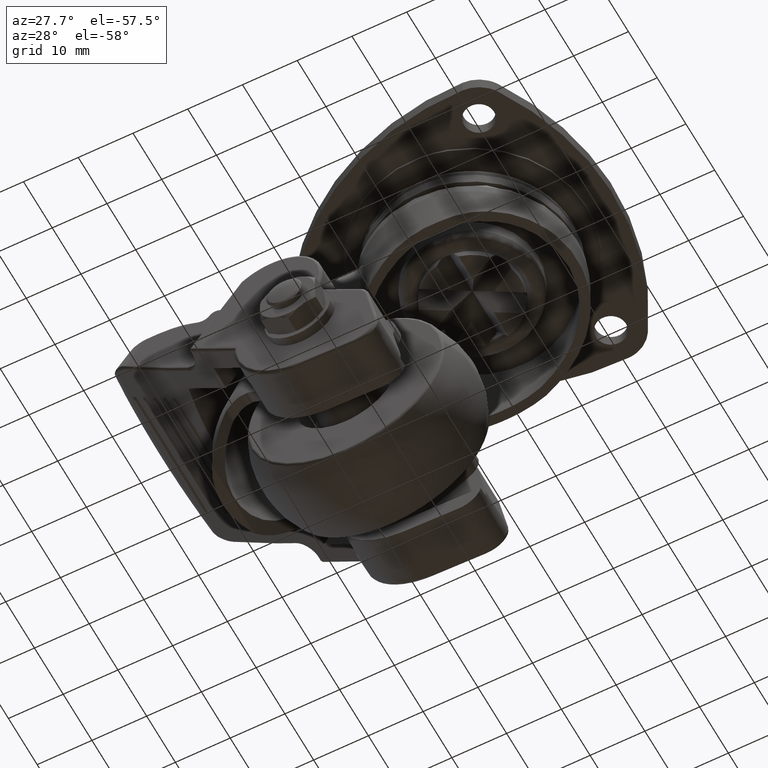
[diagram: clean part render]
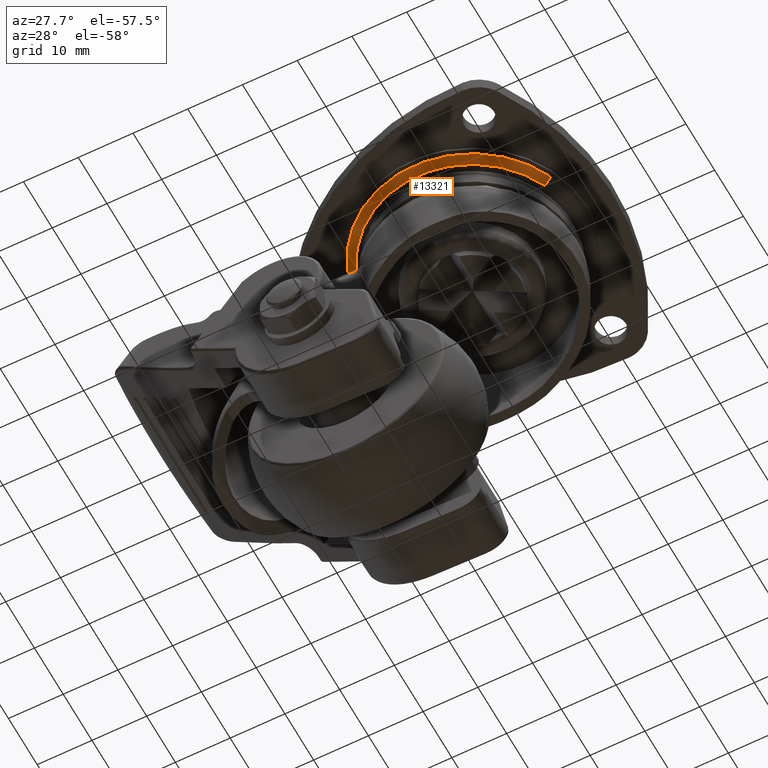
[diagram: same view with one face highlighted and labeled with its STEP entity id]
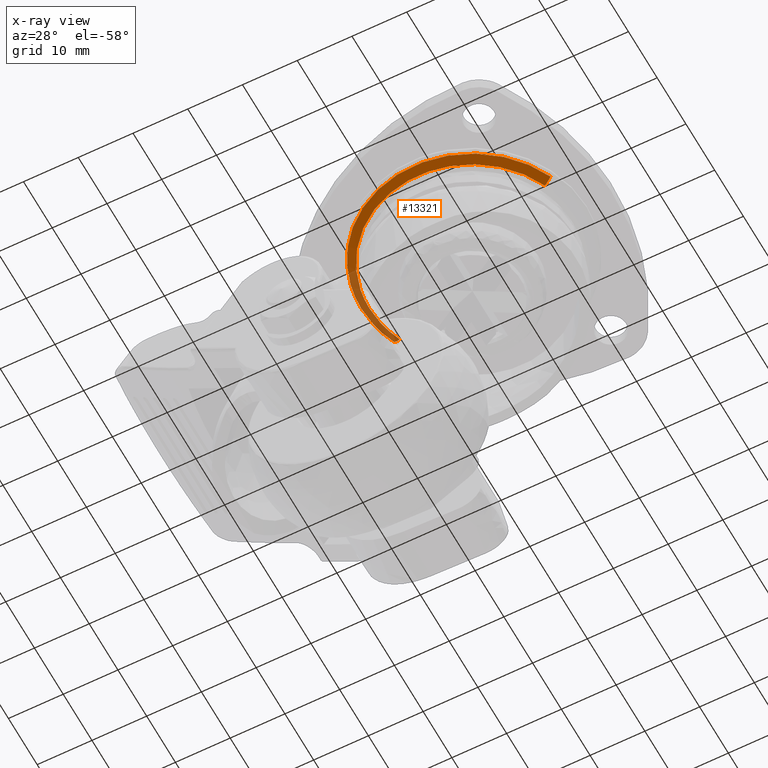
[diagram: x-ray of the same camera — body ghosted, the highlighted face saturated]
A machine part, auxiliary view. The second image highlights one B-rep face of the part: STEP entity #13321.
The next image is the same camera in x-ray: the body ghosted, the highlighted face saturated — about 18% of this face is hidden behind the body in this view.
In plain terms, the highlighted face is a freeform B-spline surface patch.
Its self-contained STEP definition (entity closure, byte-faithful):
#13202=CARTESIAN_POINT('',(18.634398406790041,-8.203213828600154,-3.124564430141668));
#13203=CARTESIAN_POINT('',(10.431184578189892,-26.837612235390193,-3.124564430141667));
#13204=CARTESIAN_POINT('',(-8.203213828600148,-18.634398406790041,-3.124564430141668));
#13205=CARTESIAN_POINT('',(-26.837612235390193,-10.431184578189896,-3.124564430141667));
#13206=CARTESIAN_POINT('',(-18.634398406790041,8.203213828600148,-3.124564430141668));
#13207=CARTESIAN_POINT('',(17.989298724664597,-7.919228774845548,-3.783900312453700));
#13208=CARTESIAN_POINT('',(10.070069949819052,-25.908527499510139,-3.783900312453700));
#13209=CARTESIAN_POINT('',(-7.919228774845543,-17.989298724664597,-3.783900312453700));
#13210=CARTESIAN_POINT('',(-25.908527499510139,-10.070069949819057,-3.783900312453700));
#13211=CARTESIAN_POINT('',(-17.989298724664597,7.919228774845543,-3.783900312453700));
#13212=CARTESIAN_POINT('',(17.174852371717243,-7.560694120852304,-4.157604682772313));
#13213=CARTESIAN_POINT('',(9.614158250864939,-24.735546492569544,-4.157604682772313));
#13214=CARTESIAN_POINT('',(-7.560694120852299,-17.174852371717243,-4.157604682772313));
#13215=CARTESIAN_POINT('',(-24.735546492569544,-9.614158250864943,-4.157604682772313));
#13216=CARTESIAN_POINT('',(-17.174852371717243,7.560694120852299,-4.157604682772313));
#13224=(BOUNDED_SURFACE()B_SPLINE_SURFACE(2,2,((#13202,#13207,#13212),(#13203,#13208,#13213),(#13204,#13209,#13214),(#13205,#13210,#13215),(#13206,#13211,#13216)),.UNSPECIFIED.,.F.,.F.,.U.)B_SPLINE_SURFACE_WITH_KNOTS((3,2,3),(3,3),(0.0,33.733712064778338,67.467424129556676),(0.0,1.915072626305169),.UNSPECIFIED.)GEOMETRIC_REPRESENTATION_ITEM()RATIONAL_B_SPLINE_SURFACE(((0.952939841561675,0.937758196414608,0.952423342705171),(0.673830224031095,0.663095179798036,0.673465004187186),(0.952939841561675,0.937758196414608,0.952423342705171),(0.673830224031095,0.663095179798036,0.673465004187186),(0.952939841561675,0.937758196414608,0.952423342705171)))REPRESENTATION_ITEM('')SURFACE());
#13225=CARTESIAN_POINT('',(18.576268879934439,-8.177624114004566,-3.183029923190378));
#13226=VERTEX_POINT('',#13225);
#13227=CARTESIAN_POINT('',(-20.296583508075301,0.0,-3.183029935218324));
#13228=VERTEX_POINT('',#13227);
#13229=CARTESIAN_POINT('',(18.576268879934435,-8.177624114004567,-3.183029923190378));
#13230=CARTESIAN_POINT('',(13.241274262498100,-20.296583497086150,-3.183029923087285));
#13231=CARTESIAN_POINT('',(0.0,-20.296583497086150,-3.183029923087286));
#13232=CARTESIAN_POINT('',(-20.296583497086150,-20.296583497086150,-3.183029923087285));
#13233=CARTESIAN_POINT('',(-20.296583508075301,0.0,-3.183029935218324));
#13241=(BOUNDED_CURVE()B_SPLINE_CURVE(2,(#13229,#13230,#13231,#13232,#13233),.UNSPECIFIED.,.F.,.U.)B_SPLINE_CURVE_WITH_KNOTS((3,2,3),(0.568414990139804,0.750000000000000,1.0),.UNSPECIFIED.)CURVE()GEOMETRIC_REPRESENTATION_ITEM()RATIONAL_B_SPLINE_CURVE((0.883563120516816,0.787259927895099,1.0,0.707106781186548,1.0))REPRESENTATION_ITEM(''));
#13242=EDGE_CURVE('',#13226,#13228,#13241,.T.);
#13243=ORIENTED_EDGE('',*,*,#13242,.T.);
#13244=CARTESIAN_POINT('',(-18.576268882500710,8.177624115122029,-3.183029927403205));
#13245=VERTEX_POINT('',#13244);
#13246=CARTESIAN_POINT('',(-20.296583508075301,0.0,-3.183029935218324));
#13247=CARTESIAN_POINT('',(-20.296583505479234,4.269762070997930,-3.183029932352504));
#13248=CARTESIAN_POINT('',(-18.576268882500710,8.177624115122029,-3.183029927403205));
#13256=(BOUNDED_CURVE()B_SPLINE_CURVE(2,(#13246,#13247,#13248),.UNSPECIFIED.,.F.,.U.)B_SPLINE_CURVE_WITH_KNOTS((3,3),(0.0,0.068414990151589),.UNSPECIFIED.)CURVE()GEOMETRIC_REPRESENTATION_ITEM()RATIONAL_B_SPLINE_CURVE((1.0,0.919846853277642,0.883563120504316))REPRESENTATION_ITEM(''));
#13257=EDGE_CURVE('',#13228,#13245,#13256,.T.);
#13258=ORIENTED_EDGE('',*,*,#13257,.T.);
#13259=CARTESIAN_POINT('',(-17.247488303954182,7.592669828948803,-4.123525559517714));
#13260=VERTEX_POINT('',#13259);
#13261=CARTESIAN_POINT('',(-18.576268882500710,8.177624115122029,-3.183029927403205));
#13262=CARTESIAN_POINT('',(-17.981868186409571,7.915957711683920,-3.771325805172209));
#13263=CARTESIAN_POINT('',(-17.247488303954185,7.592669828948803,-4.123525559517714));
#13271=(BOUNDED_CURVE()B_SPLINE_CURVE(2,(#13261,#13262,#13263),.UNSPECIFIED.,.F.,.U.)B_SPLINE_CURVE_WITH_KNOTS((3,3),(-1.341927121507276,-0.670846092274549),.UNSPECIFIED.)CURVE()GEOMETRIC_REPRESENTATION_ITEM()RATIONAL_B_SPLINE_CURVE((0.951622490865068,0.939052090996786,0.951152904234640))REPRESENTATION_ITEM(''));
#13272=EDGE_CURVE('',#13245,#13260,#13271,.T.);
#13273=ORIENTED_EDGE('',*,*,#13272,.T.);
#13274=CARTESIAN_POINT('',(-18.844747045953898,0.0,-4.123525759055076));
#13275=VERTEX_POINT('',#13274);
#13276=CARTESIAN_POINT('',(-18.844747045953898,0.0,-4.123525759055076));
#13277=CARTESIAN_POINT('',(-18.844747045953898,3.964341396150776,-4.123525759055077));
#13278=CARTESIAN_POINT('',(-17.247488303954174,7.592669828948803,-4.123525559517714));
#13286=(BOUNDED_CURVE()B_SPLINE_CURVE(2,(#13276,#13277,#13278),.UNSPECIFIED.,.F.,.U.)B_SPLINE_CURVE_WITH_KNOTS((3,3),(0.0,0.068414990138735),.UNSPECIFIED.)CURVE()GEOMETRIC_REPRESENTATION_ITEM()RATIONAL_B_SPLINE_CURVE((1.0,0.919846853292701,0.883563120517950))REPRESENTATION_ITEM(''));
#13287=EDGE_CURVE('',#13275,#13260,#13286,.T.);
#13288=ORIENTED_EDGE('',*,*,#13287,.F.);
#13289=CARTESIAN_POINT('',(17.247488303937359,-7.592669828932998,-4.123525559527264));
#13290=VERTEX_POINT('',#13289);
#13291=CARTESIAN_POINT('',(17.247488303937363,-7.592669828932998,-4.123525559527264));
#13292=CARTESIAN_POINT('',(12.294111670606419,-18.844747045953891,-4.123525759055076));
#13293=CARTESIAN_POINT('',(0.0,-18.844747045953898,-4.123525759055076));
#13294=CARTESIAN_POINT('',(-18.844747045953895,-18.844747045953895,-4.123525759055077));
#13295=CARTESIAN_POINT('',(-18.844747045953898,0.0,-4.123525759055076));
#13303=(BOUNDED_CURVE()B_SPLINE_CURVE(2,(#13291,#13292,#13293,#13294,#13295),.UNSPECIFIED.,.F.,.U.)B_SPLINE_CURVE_WITH_KNOTS((3,2,3),(0.568414990138608,0.750000000000000,1.0),.UNSPECIFIED.)CURVE()GEOMETRIC_REPRESENTATION_ITEM()RATIONAL_B_SPLINE_CURVE((0.883563120518085,0.787259927893697,1.0,0.707106781186548,1.0))REPRESENTATION_ITEM(''));
#13304=EDGE_CURVE('',#13290,#13275,#13303,.T.);
#13305=ORIENTED_EDGE('',*,*,#13304,.F.);
#13306=CARTESIAN_POINT('',(18.576268879934439,-8.177624114004564,-3.183029923190378));
#13307=CARTESIAN_POINT('',(17.981868186706699,-7.915957711814719,-3.771325805038151));
#13308=CARTESIAN_POINT('',(17.247488303937363,-7.592669828932998,-4.123525559527264));
#13316=(BOUNDED_CURVE()B_SPLINE_CURVE(2,(#13306,#13307,#13308),.UNSPECIFIED.,.F.,.U.)B_SPLINE_CURVE_WITH_KNOTS((3,3),(-1.341927121790264,-0.670846092256116),.UNSPECIFIED.)CURVE()GEOMETRIC_REPRESENTATION_ITEM()RATIONAL_B_SPLINE_CURVE((0.951622490875669,0.939052090991338,0.951152904235304))REPRESENTATION_ITEM(''));
#13317=EDGE_CURVE('',#13226,#13290,#13316,.T.);
#13318=ORIENTED_EDGE('',*,*,#13317,.F.);
#13319=EDGE_LOOP('',(#13243,#13258,#13273,#13288,#13305,#13318));
#13320=FACE_OUTER_BOUND('',#13319,.T.);
#13321=ADVANCED_FACE('',(#13320),#13224,.T.);